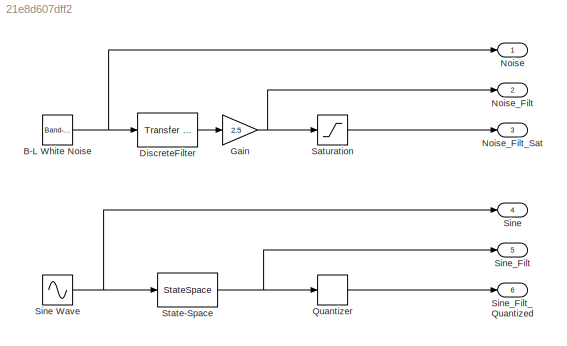
MODEL slx_21e8d607dff2
KIND model
BLOCK [Reference] B-L White Noise  REF=simulink/Sources/Band-Limited
White Noise
  Cov = [0.1]
  Ports = [0, 1]
  SourceBlock = simulink/Sources/Band-Limited\nWhite Noise
  SourceType = Band-Limited White Noise.
  Ts = 0.1
  VectorParams1D = on
  seed = [23341]
BLOCK [Reference] DiscreteFilter  REF=simulink/Discrete/Transfer Fcn
First Order
  DoSatur = off
  ICPrevOutput = 0.0
  PoleZ = 0.95
  Ports = [1, 1]
  RndMeth = Floor
  SourceBlock = simulink/Discrete/Transfer Fcn\nFirst Order
  SourceType = First Order Transfer Fcn
BLOCK [Gain] Gain
  Gain = 2.5
  OutDataTypeStr = Inherit: Inherit via internal rule
  ParamDataTypeStr = Inherit: Inherit via internal rule
  SaturateOnIntegerOverflow = off
BLOCK [Outport] Noise
  IconDisplay = Port number
BLOCK [Outport] Noise_Filt
  IconDisplay = Port number
  Port = 2
BLOCK [Outport] Noise_Filt_Sat
  IconDisplay = Port number
  Port = 3
BLOCK [Quantizer] Quantizer
  QuantizationInterval = 0.1
  SampleTime = 0.02
BLOCK [Saturate] Saturation
  InputPortMap = u0
  Ports = [1, 1]
BLOCK [Outport] Sine
  IconDisplay = Port number
  Port = 4
BLOCK [Sin] Sine Wave
  Amplitude = 2
  Ports = [0, 1]
  SampleTime = 0
BLOCK [Outport] Sine_Filt
  IconDisplay = Port number
  Port = 5
BLOCK [Outport] Sine_Filt_Quantized
  IconDisplay = Port number
  Port = 6
BLOCK [StateSpace] State-Space
  A = [-4.2 -2.25;4 0]
  B = [2 0]'
  C = [0 1.125]
  D = 0
NET B-L White Noise:1 -> DiscreteFilter:1, Noise:1
LINE DiscreteFilter:1 -> Gain:1
NET Gain:1 -> Noise_Filt:1, Saturation:1
LINE Quantizer:1 -> Sine_Filt_Quantized:1
LINE Saturation:1 -> Noise_Filt_Sat:1
NET Sine Wave:1 -> Sine:1, State-Space:1
NET State-Space:1 -> Quantizer:1, Sine_Filt:1
note: NET lines group one-source signal fan-out (src -> all destinations, sorted); 1:1 wires keep LINE
